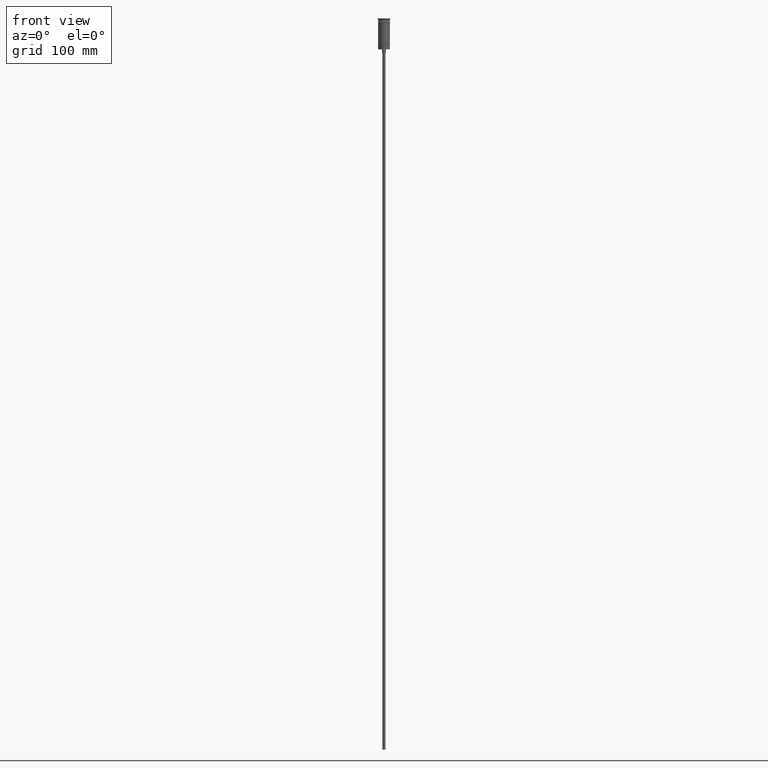
[diagram: clean part render]
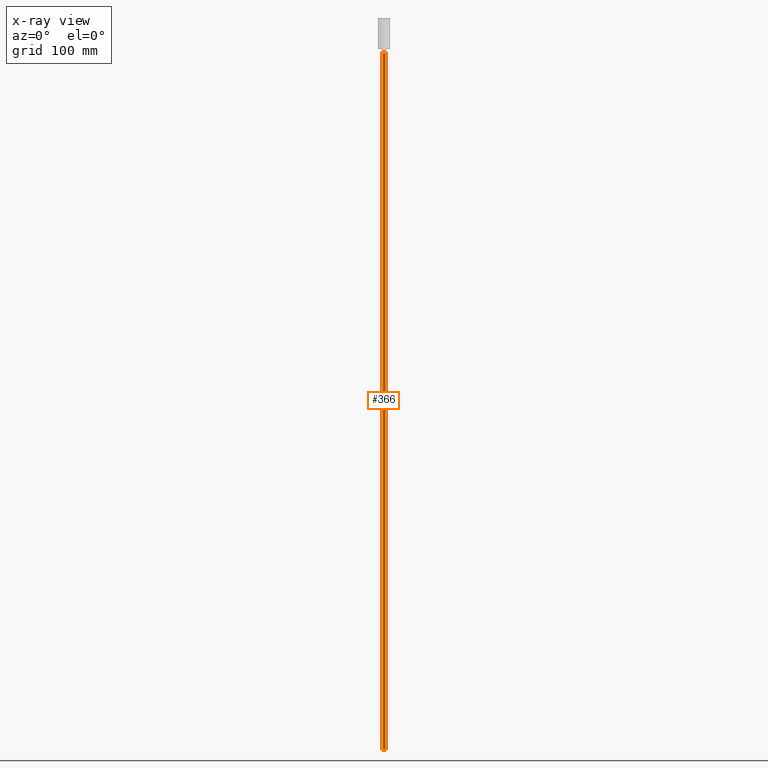
[diagram: x-ray — body ghosted, one internal face saturated and labeled with its STEP entity id]
A machine part, front view, then the same camera in x-ray: the body is ghosted and one INTERNAL B-rep face — a face not visible from any outside direction — is saturated and labeled: STEP entity #366.
In plain terms, the highlighted cylindrical surface (edge-blend (fillet) strip) has radius 1.25 mm, axis along (-0, -0, 1).
Its self-contained STEP definition (entity closure, byte-faithful):
#215 = CARTESIAN_POINT ( 'NONE',  ( -1.250000000000000000, 1.530808498934191571E-16, -626.5000000000000000 ) ) ;
#243 = AXIS2_PLACEMENT_3D ( 'NONE', #1320, #706, #611 ) ;
#299 = DIRECTION ( 'NONE',  ( 0.000000000000000000, 0.000000000000000000, -1.000000000000000000 ) ) ;
#366 = ADVANCED_FACE ( 'NONE', ( #496 ), #855, .T. ) ;
#369 = CARTESIAN_POINT ( 'NONE',  ( -1.250000000000000000, 1.530808498934191571E-16, -626.5000000000000000 ) ) ;
#399 = ORIENTED_EDGE ( 'NONE', *, *, #1168, .F. ) ;
#496 = FACE_OUTER_BOUND ( 'NONE', #878, .T. ) ;
#610 = VERTEX_POINT ( 'NONE', #809 ) ;
#611 = DIRECTION ( 'NONE',  ( -1.000000000000000000, 0.000000000000000000, 0.000000000000000000 ) ) ;
#617 = ORIENTED_EDGE ( 'NONE', *, *, #898, .T. ) ;
#622 = CARTESIAN_POINT ( 'NONE',  ( 0.000000000000000000, 0.000000000000000000, -626.5000000000000000 ) ) ;
#637 = ORIENTED_EDGE ( 'NONE', *, *, #830, .F. ) ;
#658 = EDGE_CURVE ( 'NONE', #1431, #610, #1112, .T. ) ;
#706 = DIRECTION ( 'NONE',  ( 0.000000000000000000, 0.000000000000000000, -1.000000000000000000 ) ) ;
#727 = DIRECTION ( 'NONE',  ( -0.000000000000000000, -0.000000000000000000, 1.000000000000000000 ) ) ;
#735 = ORIENTED_EDGE ( 'NONE', *, *, #658, .T. ) ;
#780 = DIRECTION ( 'NONE',  ( -1.000000000000000000, 0.000000000000000000, 0.000000000000000000 ) ) ;
#789 = CIRCLE ( 'NONE', #1337, 1.250000000000000000 ) ;
#809 = CARTESIAN_POINT ( 'NONE',  ( 1.250000000000000000, 0.000000000000000000, -29.50000000000000000 ) ) ;
#830 = EDGE_CURVE ( 'NONE', #1375, #1054, #789, .T. ) ;
#855 = CYLINDRICAL_SURFACE ( 'NONE', #1003, 1.250000000000000000 ) ;
#878 = EDGE_LOOP ( 'NONE', ( #637, #617, #735, #399 ) ) ;
#888 = LINE ( 'NONE', #1017, #892 ) ;
#892 = VECTOR ( 'NONE', #1032, 1000.000000000000000 ) ;
#898 = EDGE_CURVE ( 'NONE', #1375, #1431, #954, .T. ) ;
#954 = LINE ( 'NONE', #369, #1130 ) ;
#1003 = AXIS2_PLACEMENT_3D ( 'NONE', #622, #1094, #1100 ) ;
#1017 = CARTESIAN_POINT ( 'NONE',  ( 1.250000000000000000, 0.000000000000000000, -626.5000000000000000 ) ) ;
#1032 = DIRECTION ( 'NONE',  ( -0.000000000000000000, -0.000000000000000000, 1.000000000000000000 ) ) ;
#1054 = VERTEX_POINT ( 'NONE', #1216 ) ;
#1094 = DIRECTION ( 'NONE',  ( -0.000000000000000000, -0.000000000000000000, 1.000000000000000000 ) ) ;
#1100 = DIRECTION ( 'NONE',  ( 1.000000000000000000, 0.000000000000000000, 0.000000000000000000 ) ) ;
#1112 = CIRCLE ( 'NONE', #243, 1.250000000000000000 ) ;
#1130 = VECTOR ( 'NONE', #727, 1000.000000000000000 ) ;
#1168 = EDGE_CURVE ( 'NONE', #1054, #610, #888, .T. ) ;
#1216 = CARTESIAN_POINT ( 'NONE',  ( 1.250000000000000000, 0.000000000000000000, -626.5000000000000000 ) ) ;
#1320 = CARTESIAN_POINT ( 'NONE',  ( 0.000000000000000000, 0.000000000000000000, -29.50000000000000000 ) ) ;
#1337 = AXIS2_PLACEMENT_3D ( 'NONE', #1397, #299, #780 ) ;
#1375 = VERTEX_POINT ( 'NONE', #215 ) ;
#1397 = CARTESIAN_POINT ( 'NONE',  ( 0.000000000000000000, 0.000000000000000000, -626.5000000000000000 ) ) ;
#1431 = VERTEX_POINT ( 'NONE', #1461 ) ;
#1461 = CARTESIAN_POINT ( 'NONE',  ( -1.250000000000000000, 1.530808498934191571E-16, -29.50000000000000000 ) ) ;